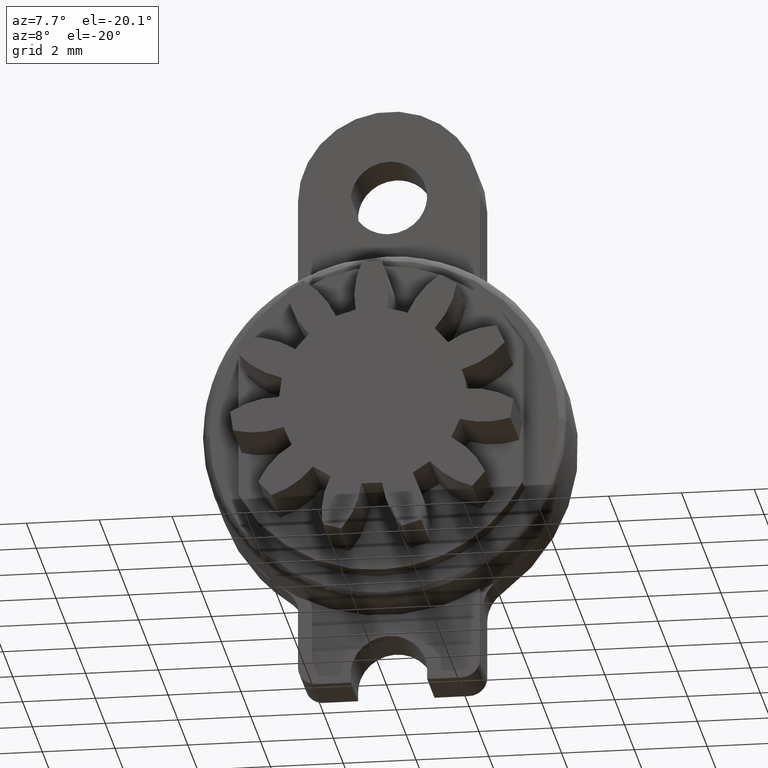
[diagram: clean part render]
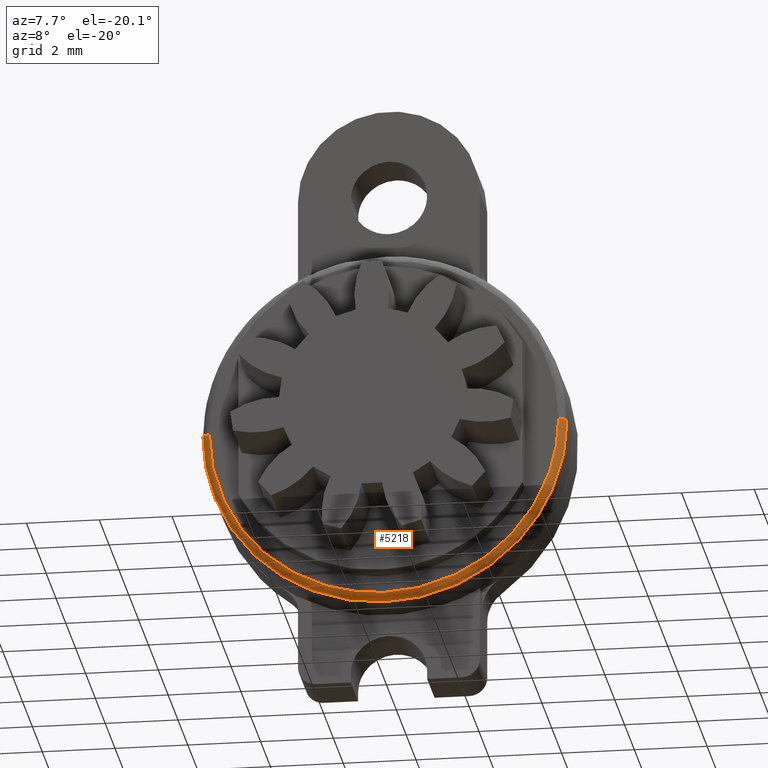
[diagram: same view with one face highlighted and labeled with its STEP entity id]
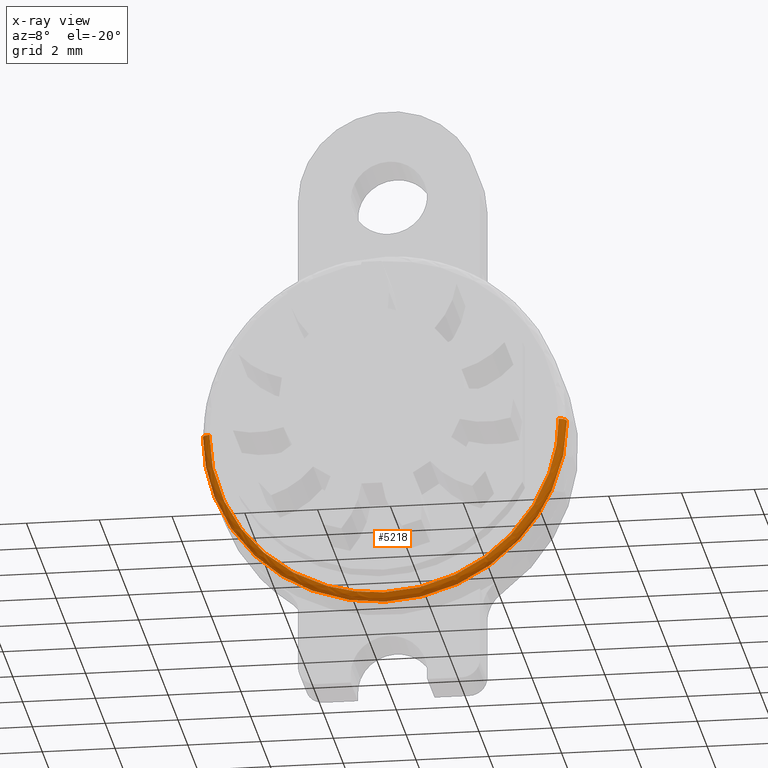
[diagram: x-ray of the same camera — body ghosted, the highlighted face saturated]
A machine part, auxiliary view. The second image highlights one B-rep face of the part: STEP entity #5218.
The next image is the same camera in x-ray: the body ghosted, the highlighted face saturated — about 0% of this face is hidden behind the body in this view.
In plain terms, the highlighted face is a freeform B-spline surface patch.
Its self-contained STEP definition (entity closure, byte-faithful):
#4931=CARTESIAN_POINT('',(-5.000000000000005,-2.300000000162677,-4.425539E-016));
#4932=VERTEX_POINT('',#4931);
#4955=CARTESIAN_POINT('',(3.686386764767185,-2.300000000086347,-3.377950949991615));
#4956=VERTEX_POINT('',#4955);
#4962=CARTESIAN_POINT('',(-7.105427E-015,-2.299999999999970,-5.0));
#4963=VERTEX_POINT('',#4962);
#4964=CARTESIAN_POINT('',(3.686386764767186,-2.300000000086342,-3.377950949991617));
#4965=CARTESIAN_POINT('',(2.200052725762777,-2.300000000035765,-5.0));
#4966=CARTESIAN_POINT('',(-7.105427E-015,-2.299999999999970,-5.0));
#4974=(BOUNDED_CURVE()B_SPLINE_CURVE(2,(#4964,#4965,#4966),.UNSPECIFIED.,.F.,.U.)B_SPLINE_CURVE_WITH_KNOTS((3,3),(0.368415205476859,0.500000000000000),.UNSPECIFIED.)CURVE()GEOMETRIC_REPRESENTATION_ITEM()RATIONAL_B_SPLINE_CURVE((0.853959781283204,0.845838823940841,1.0))REPRESENTATION_ITEM(''));
#4975=EDGE_CURVE('',#4956,#4963,#4974,.T.);
#4977=CARTESIAN_POINT('',(-7.105427E-015,-2.299999999999970,-5.0));
#4978=CARTESIAN_POINT('',(-5.000000000000007,-2.300000000081324,-5.000000000000001));
#4979=CARTESIAN_POINT('',(-5.000000000000005,-2.300000000162677,-4.425539E-016));
#4987=(BOUNDED_CURVE()B_SPLINE_CURVE(2,(#4977,#4978,#4979),.UNSPECIFIED.,.F.,.U.)B_SPLINE_CURVE_WITH_KNOTS((3,3),(0.500000000000000,0.750000000000000),.UNSPECIFIED.)CURVE()GEOMETRIC_REPRESENTATION_ITEM()RATIONAL_B_SPLINE_CURVE((1.0,0.707106781186548,1.0))REPRESENTATION_ITEM(''));
#4988=EDGE_CURVE('',#4963,#4932,#4987,.T.);
#5026=CARTESIAN_POINT('',(4.999999999999992,-2.300000000162677,6.653662E-016));
#5027=VERTEX_POINT('',#5026);
#5041=CARTESIAN_POINT('',(4.999999999999992,-2.300000000162676,6.653662E-016));
#5042=CARTESIAN_POINT('',(4.999999999999993,-2.300000000131039,-1.944393590493176));
#5043=CARTESIAN_POINT('',(3.686386764767186,-2.300000000086342,-3.377950949991617));
#5051=(BOUNDED_CURVE()B_SPLINE_CURVE(2,(#5041,#5042,#5043),.UNSPECIFIED.,.F.,.U.)B_SPLINE_CURVE_WITH_KNOTS((3,3),(0.250000000000000,0.368415205476859),.UNSPECIFIED.)CURVE()GEOMETRIC_REPRESENTATION_ITEM()RATIONAL_B_SPLINE_CURVE((1.000000000000000,0.861267957245706,0.853959781283204))REPRESENTATION_ITEM(''));
#5052=EDGE_CURVE('',#5027,#4956,#5051,.T.);
#5092=CARTESIAN_POINT('',(-4.800000000157622,-2.499999999999985,-4.426226E-016));
#5093=VERTEX_POINT('',#5092);
#5094=CARTESIAN_POINT('',(-4.800000000157622,-2.499999999999970,-8.852452E-016));
#5095=CARTESIAN_POINT('',(-4.999999999837297,-2.499999999842354,-8.742504E-016));
#5096=CARTESIAN_POINT('',(-5.000000000000005,-2.300000000162676,-8.851079E-016));
#5104=(BOUNDED_CURVE()B_SPLINE_CURVE(2,(#5094,#5095,#5096),.UNSPECIFIED.,.F.,.U.)B_SPLINE_CURVE_WITH_KNOTS((3,3),(-1.736413120256533,-0.276558718852839),.UNSPECIFIED.)CURVE()GEOMETRIC_REPRESENTATION_ITEM()RATIONAL_B_SPLINE_CURVE((0.888510408769929,0.626638727531525,0.883897566843454))REPRESENTATION_ITEM(''));
#5105=EDGE_CURVE('',#5093,#4932,#5104,.T.);
#5122=CARTESIAN_POINT('',(4.800000000157608,-2.499999999999985,2.213113E-016));
#5123=VERTEX_POINT('',#5122);
#5137=CARTESIAN_POINT('',(4.800000000157607,-2.499999999999985,2.213113E-016));
#5138=CARTESIAN_POINT('',(4.999999999837285,-2.499999999842352,4.371252E-016));
#5139=CARTESIAN_POINT('',(4.999999999999990,-2.300000000162676,4.425539E-016));
#5147=(BOUNDED_CURVE()B_SPLINE_CURVE(2,(#5137,#5138,#5139),.UNSPECIFIED.,.F.,.U.)B_SPLINE_CURVE_WITH_KNOTS((3,3),(-1.736413120256528,-0.276558718852839),.UNSPECIFIED.)CURVE()GEOMETRIC_REPRESENTATION_ITEM()RATIONAL_B_SPLINE_CURVE((0.888510408769927,0.626638727531526,0.883897566843454))REPRESENTATION_ITEM(''));
#5148=EDGE_CURVE('',#5123,#5027,#5147,.T.);
#5154=CARTESIAN_POINT('',(4.786129884907059,-2.499518470090609,0.133804577751508));
#5155=CARTESIAN_POINT('',(4.786129884907058,-2.499518470090609,0.067291911056557));
#5156=CARTESIAN_POINT('',(4.786129884907060,-2.499518470090608,-4.786129884907067));
#5157=CARTESIAN_POINT('',(-6.519315E-015,-2.499518470090608,-4.786129884907067));
#5158=CARTESIAN_POINT('',(-4.786129884907074,-2.499518470090608,-4.786129884907067));
#5159=CARTESIAN_POINT('',(-4.786129884907074,-2.499518470090608,0.067291911056557));
#5160=CARTESIAN_POINT('',(-4.786129884907074,-2.499518470090608,0.133804577751510));
#5161=CARTESIAN_POINT('',(5.015547854383984,-2.515467137096655,0.140218355745973));
#5162=CARTESIAN_POINT('',(5.015547854383984,-2.515467137096656,0.070517476172435));
#5163=CARTESIAN_POINT('',(5.015547854383986,-2.515467137096656,-5.015547854383991));
#5164=CARTESIAN_POINT('',(-6.491220E-015,-2.515467137096655,-5.015547854383992));
#5165=CARTESIAN_POINT('',(-5.015547854383998,-2.515467137096656,-5.015547854383991));
#5166=CARTESIAN_POINT('',(-5.015547854384000,-2.515467137096656,0.070517476172435));
#5167=CARTESIAN_POINT('',(-5.015547854384000,-2.515467137096656,0.140218355745975));
#5168=CARTESIAN_POINT('',(4.999513261111843,-2.286055157207239,0.139770080827868));
#5169=CARTESIAN_POINT('',(4.999513261111843,-2.286055157207239,0.070292033392936));
#5170=CARTESIAN_POINT('',(4.999513261111842,-2.286055157207238,-4.999513261111848));
#5171=CARTESIAN_POINT('',(-6.493184E-015,-2.286055157207239,-4.999513261111850));
#5172=CARTESIAN_POINT('',(-4.999513261111854,-2.286055157207238,-4.999513261111851));
#5173=CARTESIAN_POINT('',(-4.999513261111856,-2.286055157207238,0.070292033392936));
#5174=CARTESIAN_POINT('',(-4.999513261111857,-2.286055157207239,0.139770080827870));
#5182=(BOUNDED_SURFACE()B_SPLINE_SURFACE(2,2,((#5154,#5161,#5168),(#5155,#5162,#5169),(#5156,#5163,#5170),(#5157,#5164,#5171),(#5158,#5165,#5172),(#5159,#5166,#5173),(#5160,#5167,#5174)),.UNSPECIFIED.,.F.,.F.,.U.)B_SPLINE_SURFACE_WITH_KNOTS((3,1,2,1,3),(3,3),(0.0,0.165669295841330,8.449134087908005,16.732598879974681,16.898268175816010),(0.0,0.364545435399405),.UNSPECIFIED.)GEOMETRIC_REPRESENTATION_ITEM()RATIONAL_B_SPLINE_SURFACE(((0.926697838400259,0.606435486919035,0.921564728292852),(0.921332230155912,0.602924207283492,0.916228840909793),(0.647686209694202,0.423848945870745,0.644098584373797),(0.915966621911565,0.599412927647948,0.910892953526734),(0.647686209694202,0.423848945870745,0.644098584373797),(0.921332230155912,0.602924207283492,0.916228840909793),(0.926697838400259,0.606435486919036,0.921564728292852)))REPRESENTATION_ITEM('')SURFACE());
#5183=ORIENTED_EDGE('',*,*,#4988,.F.);
#5184=ORIENTED_EDGE('',*,*,#4975,.F.);
#5185=ORIENTED_EDGE('',*,*,#5052,.F.);
#5186=ORIENTED_EDGE('',*,*,#5148,.F.);
#5187=CARTESIAN_POINT('',(-7.105427E-015,-2.500000000000000,-4.800000000000000));
#5188=VERTEX_POINT('',#5187);
#5189=CARTESIAN_POINT('',(-7.105427E-015,-2.500000000000000,-4.800000000000000));
#5190=CARTESIAN_POINT('',(4.800000000078800,-2.499999999999992,-4.800000000000001));
#5191=CARTESIAN_POINT('',(4.800000000157608,-2.499999999999985,2.213113E-016));
#5199=(BOUNDED_CURVE()B_SPLINE_CURVE(2,(#5189,#5190,#5191),.UNSPECIFIED.,.F.,.U.)B_SPLINE_CURVE_WITH_KNOTS((3,3),(0.500000000000000,0.750000000000000),.UNSPECIFIED.)CURVE()GEOMETRIC_REPRESENTATION_ITEM()RATIONAL_B_SPLINE_CURVE((1.0,0.707106781186547,1.0))REPRESENTATION_ITEM(''));
#5200=EDGE_CURVE('',#5188,#5123,#5199,.T.);
#5201=ORIENTED_EDGE('',*,*,#5200,.F.);
#5202=CARTESIAN_POINT('',(-4.800000000157622,-2.499999999999985,-4.426226E-016));
#5203=CARTESIAN_POINT('',(-4.800000000078815,-2.499999999999992,-4.800000000000001));
#5204=CARTESIAN_POINT('',(-7.105427E-015,-2.500000000000000,-4.800000000000000));
#5212=(BOUNDED_CURVE()B_SPLINE_CURVE(2,(#5202,#5203,#5204),.UNSPECIFIED.,.F.,.U.)B_SPLINE_CURVE_WITH_KNOTS((3,3),(0.250000000000000,0.500000000000000),.UNSPECIFIED.)CURVE()GEOMETRIC_REPRESENTATION_ITEM()RATIONAL_B_SPLINE_CURVE((1.0,0.707106781186547,1.0))REPRESENTATION_ITEM(''));
#5213=EDGE_CURVE('',#5093,#5188,#5212,.T.);
#5214=ORIENTED_EDGE('',*,*,#5213,.F.);
#5215=ORIENTED_EDGE('',*,*,#5105,.T.);
#5216=EDGE_LOOP('',(#5183,#5184,#5185,#5186,#5201,#5214,#5215));
#5217=FACE_OUTER_BOUND('',#5216,.T.);
#5218=ADVANCED_FACE('',(#5217),#5182,.T.);